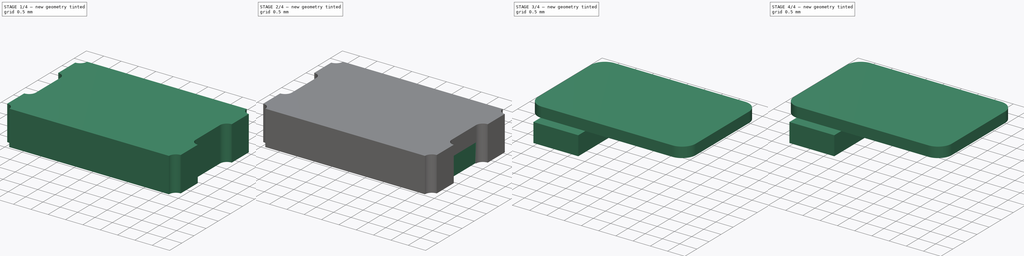
[diagram: build sequence overview — one tinted view per stage of 4, left to right]
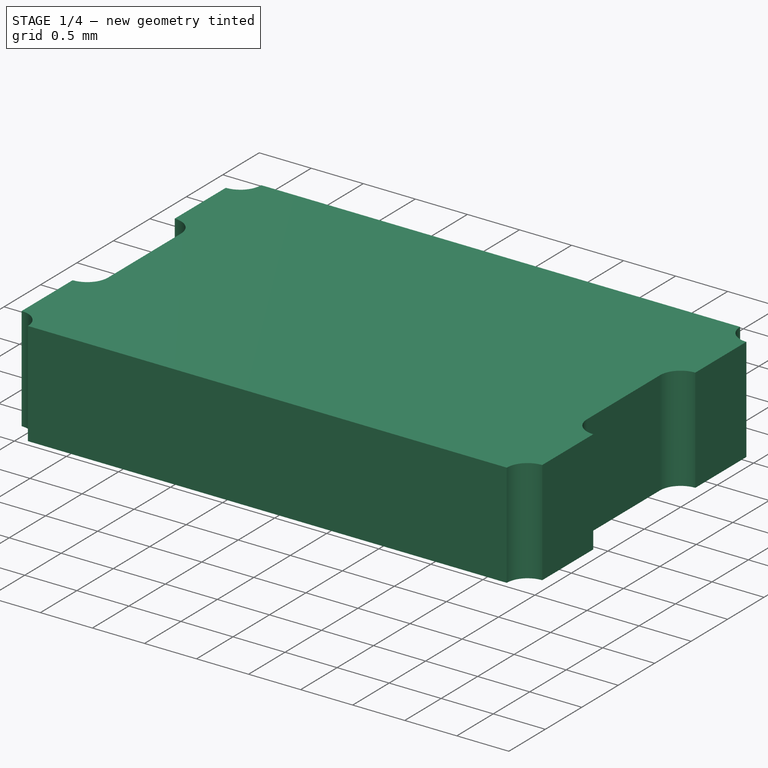
[diagram: stage 1 of 4 — iso view after this stage's code; geometry added in this stage tinted green]
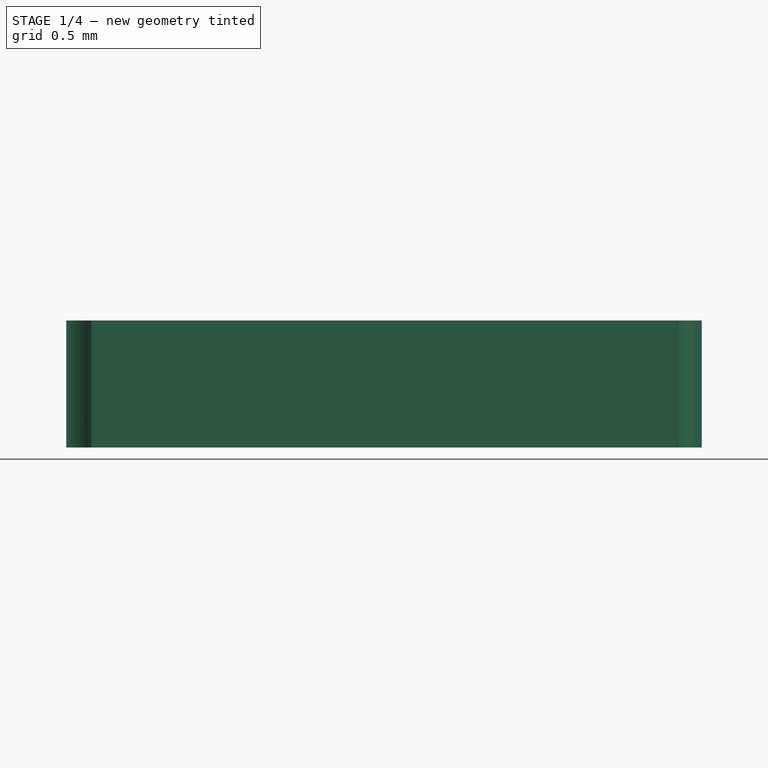
[diagram: stage 1 of 4 — front view after this stage's code; geometry added in this stage tinted green]
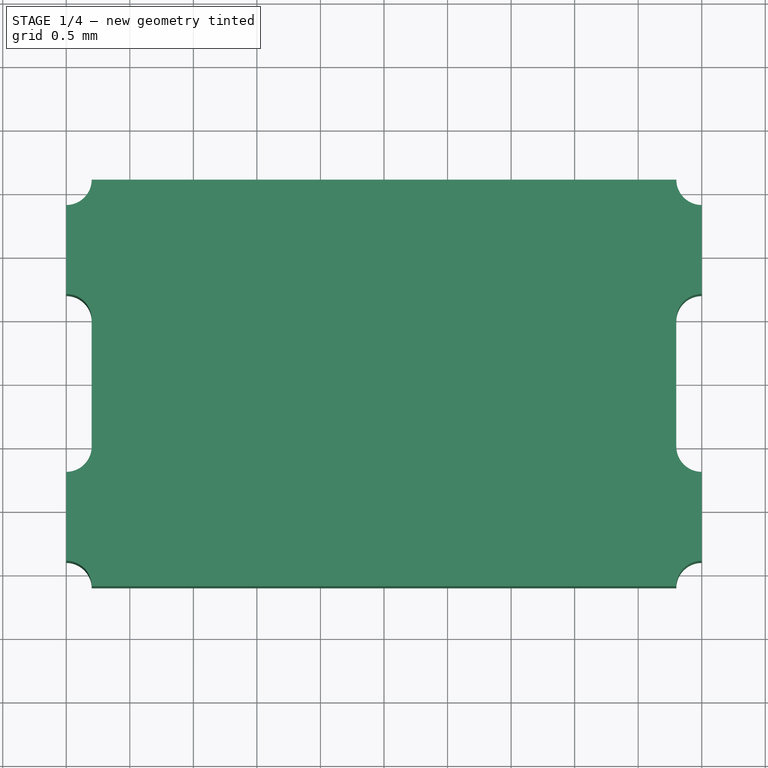
[diagram: stage 1 of 4 — top view after this stage's code; geometry added in this stage tinted green]
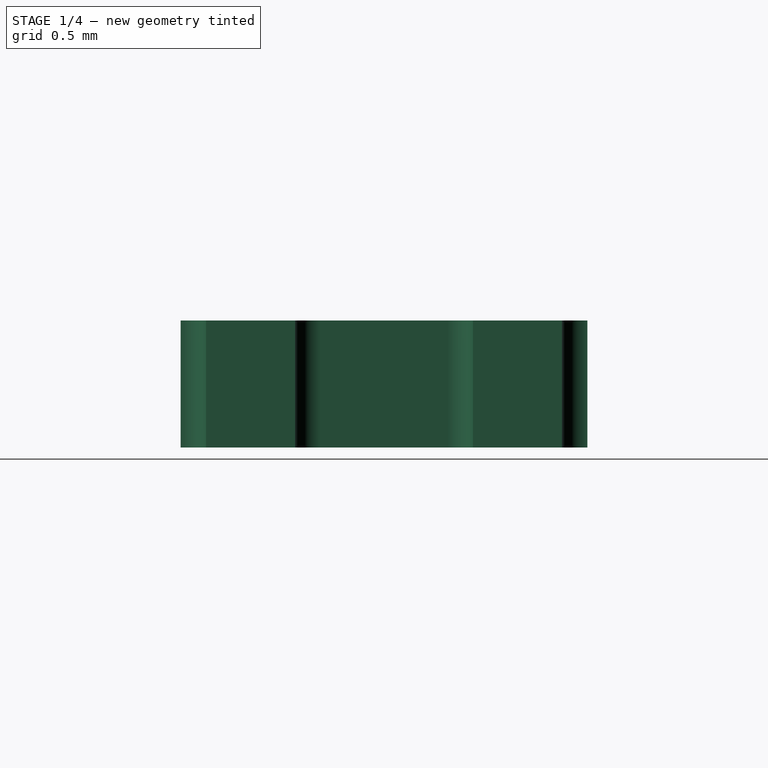
[diagram: stage 1 of 4 — right view after this stage's code; geometry added in this stage tinted green]
FCSTD DOCUMENT  (FreeCAD 0.19R23323 (Git))
Label: Crystal_NDK_NX5032GA-20.000000MHZ-LN-CD-1
License: All rights reserved
LicenseURL: http://en.wikipedia.org/wiki/All_rights_reserved
objects: Sketcher::SketchObject×7, PartDesign::Pad×4, PartDesign::Body×4, PartDesign::Pocket×4, PartDesign::ShapeBinder×2, PartDesign::FeatureBase×1
note: 30 computed .brp shape members not serialized (recipe doc carries the construction recipe); baked Part::Feature solids carry a one-line shape summary decoded from their .brp

FEATURE [Sketcher::SketchObject] Sketch
  MapMode = 5
  Support = -> [XY_Plane]
  sketch-geometry (16):
    g0: LineSegment StartX=-2.3 StartY=1.6 StartZ=0 EndX=2.3 EndY=1.6 EndZ=0
    g1: LineSegment StartX=-2.3 StartY=-1.6 StartZ=0 EndX=2.3 EndY=-1.6 EndZ=0
    g2: LineSegment StartX=-2.5 StartY=1.4 StartZ=0 EndX=-2.5 EndY=0.7 EndZ=0
    g3: LineSegment StartX=-2.5 StartY=-0.7 StartZ=0 EndX=-2.5 EndY=-1.4 EndZ=0
    g4: LineSegment StartX=2.5 StartY=1.4 StartZ=0 EndX=2.5 EndY=0.7 EndZ=0
    g5: LineSegment StartX=2.5 StartY=-0.7 StartZ=0 EndX=2.5 EndY=-1.4 EndZ=0
    g6: LineSegment StartX=-2.3 StartY=0.5 StartZ=0 EndX=-2.3 EndY=-0.5 EndZ=0
    g7: LineSegment StartX=2.3 StartY=0.5 StartZ=0 EndX=2.3 EndY=-0.5 EndZ=0
    g8: ArcOfCircle CenterX=2.5 CenterY=1.6 CenterZ=0 NormalX=0 NormalY=0 NormalZ=1 AngleXU=0 Radius=0.2 StartAngle=3.14159 EndAngle=4.71239
    g9: ArcOfCircle CenterX=2.5 CenterY=-1.6 CenterZ=0 NormalX=0 NormalY=0 NormalZ=1 AngleXU=0 Radius=0.2 StartAngle=1.5708 EndAngle=3.14159
    g10: ArcOfCircle CenterX=-2.5 CenterY=-1.6 CenterZ=0 NormalX=0 NormalY=0 NormalZ=1 AngleXU=0 Radius=0.2 StartAngle=0 EndAngle=1.5708
    g11: ArcOfCircle CenterX=-2.5 CenterY=1.6 CenterZ=0 NormalX=0 NormalY=0 NormalZ=1 AngleXU=0 Radius=0.2 StartAngle=4.71239 EndAngle=6.28319
    g12: ArcOfCircle CenterX=-2.5 CenterY=0.5 CenterZ=0 NormalX=0 NormalY=0 NormalZ=1 AngleXU=0 Radius=0.2 StartAngle=0 EndAngle=1.5708
    g13: ArcOfCircle CenterX=-2.5 CenterY=-0.5 CenterZ=0 NormalX=0 NormalY=0 NormalZ=1 AngleXU=0 Radius=0.2 StartAngle=4.71239 EndAngle=6.28319
    g14: ArcOfCircle CenterX=2.5 CenterY=0.5 CenterZ=0 NormalX=0 NormalY=0 NormalZ=1 AngleXU=0 Radius=0.2 StartAngle=1.5708 EndAngle=3.14159
    g15: ArcOfCircle CenterX=2.5 CenterY=-0.5 CenterZ=0 NormalX=0 NormalY=0 NormalZ=1 AngleXU=0 Radius=0.2 StartAngle=3.14159 EndAngle=4.71239
  constraints (55):
    c: Horizontal(g0)
    c: Horizontal(g1)
    c: Vertical(g2)
    c: Vertical(g4)
    c: Vertical(g3)
    c: Vertical(g5)
    c: Equal(g2,g3)
    c: Equal(g3,g4)
    c: Equal(g4,g5)
    c: Equal(g0,g1)
    c: Vertical(g6)
    c: Vertical(g7)
    c: Equal(g6,g7)
    c: Vertical(g3,g2)
    c: Vertical(g4,g5)
    c: Horizontal(g6,g7)
    c: Horizontal(g2,g4)
    c: Vertical(g0,g1)
    c: Coincident(g8,g0)
    c: Coincident(g8,g4)
    c: Horizontal(g0,g8)
    c: Vertical(g8,g4)
    c: Coincident(g9,g1)
    c: Coincident(g9,g5)
    c: Vertical(g9,g5)
    c: Horizontal(g9,g1)
    c: Coincident(g10,g3)
    c: Coincident(g10,g1)
    c: Horizontal(g1,g10)
    c: Vertical(g3,g10)
    c: Coincident(g11,g0)
    c: Coincident(g11,g2)
    c: Horizontal(g11,g0)
    c: Vertical(g2,g11)
    c: Coincident(g12,g2)
    c: Coincident(g12,g6)
    c: Horizontal(g12,g6)
    c: Vertical(g2,g12)
    c: Coincident(g13,g3)
    c: Coincident(g13,g6)
    c: Horizontal(g13,g6)
    c: Vertical(g13,g3)
    c: Coincident(g14,g4)
    c: Coincident(g14,g7)
    c: Coincident(g15,g7)
    c: Coincident(g15,g5)
    c: Vertical(g15,g5)
    c: Horizontal(g7,g15)
    c: Vertical(g14,g4)
    c: Equal(g10,g13)
    c: Radius(g9) = 0.2
    c: DistanceX(g3,g5) = 5
    c: DistanceY(g7,g7) = 1
    c: DistanceY(g1,g0) = 3.2
    c: Symmetric(g6,g7,g-1)
FEATURE [PartDesign::Pad] Pad
  Direction = (1,1,1)
  Length = 1
  Length2 = 100
  Profile = -> Sketch
  Type = 0
FEATURE [PartDesign::Body] Body001  label="PadLeft"
  Group = -> [ShapeBinder,Sketch003,Pad002,Pad003]
  Origin = -> Origin001
  Tip = -> Pad003
FEATURE [Sketcher::SketchObject] Sketch004
  MapMode = 5
  Placement = pos=(-2.3,0,0) rot=(0.57735,-0.57735,-0.57735;2.0944rad)
  sketch-geometry (4):
    g0: LineSegment StartX=-0.5 StartY=0 StartZ=0 EndX=0.5 EndY=0 EndZ=0
    g1: LineSegment StartX=0.5 StartY=0 StartZ=0 EndX=0.5 EndY=0.55 EndZ=0
    g2: LineSegment StartX=0.5 StartY=0.55 StartZ=0 EndX=-0.5 EndY=0.55 EndZ=0
    g3: LineSegment StartX=-0.5 StartY=0.55 StartZ=0 EndX=-0.5 EndY=0 EndZ=0
  constraints (8):
    c: Coincident(g0,g1)
    c: Coincident(g1,g2)
    c: Coincident(g2,g3)
    c: Coincident(g3,g0)
    c: Horizontal(g2)
    c: Vertical(g1)
    c: Vertical(g3)
    c: DistanceY(g1,g1) = 0.55
FEATURE [PartDesign::Pocket] Pocket
  BaseFeature = -> Pad
  Length = 0.02
  Length2 = 100
  Profile = -> Sketch004
  Type = 0
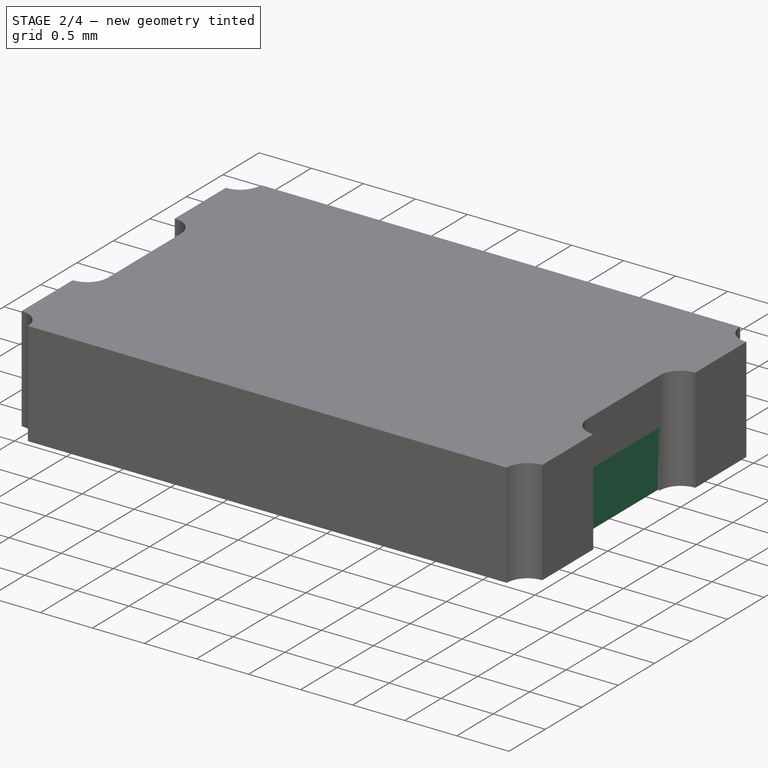
[diagram: stage 2 of 4 — iso view after this stage's code; geometry added in this stage tinted green]
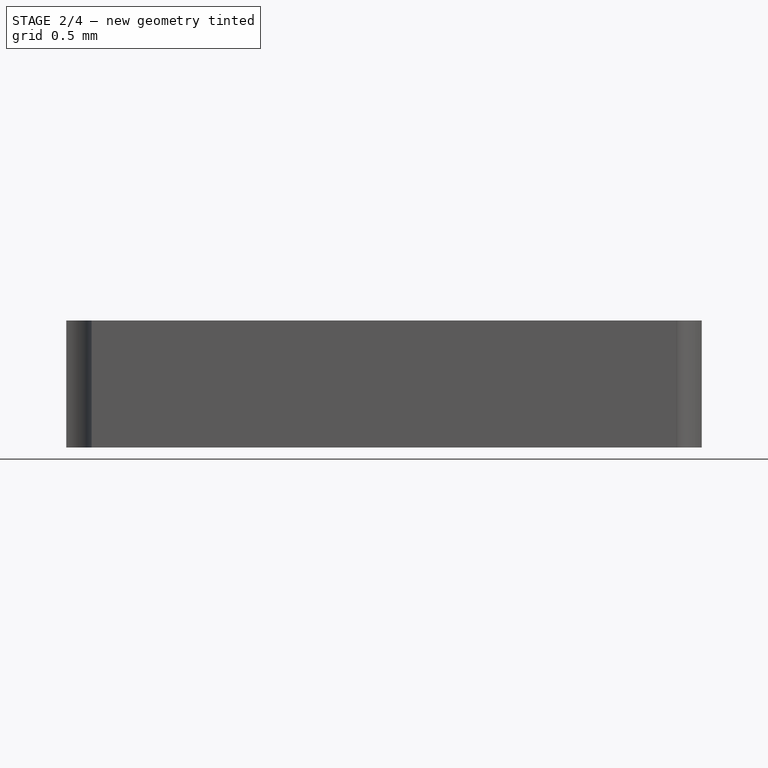
[diagram: stage 2 of 4 — front view after this stage's code; geometry added in this stage tinted green]
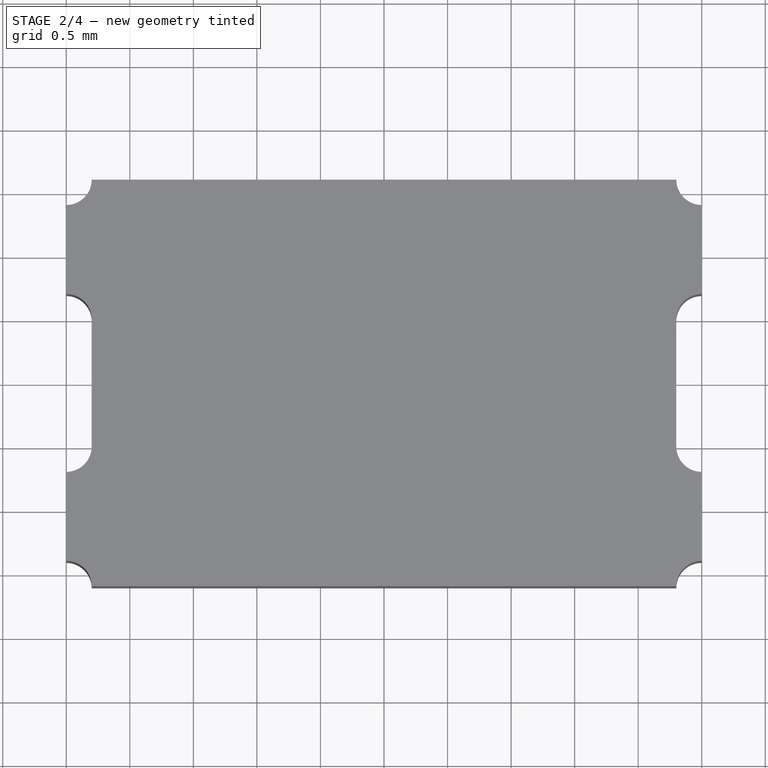
[diagram: stage 2 of 4 — top view after this stage's code; geometry added in this stage tinted green]
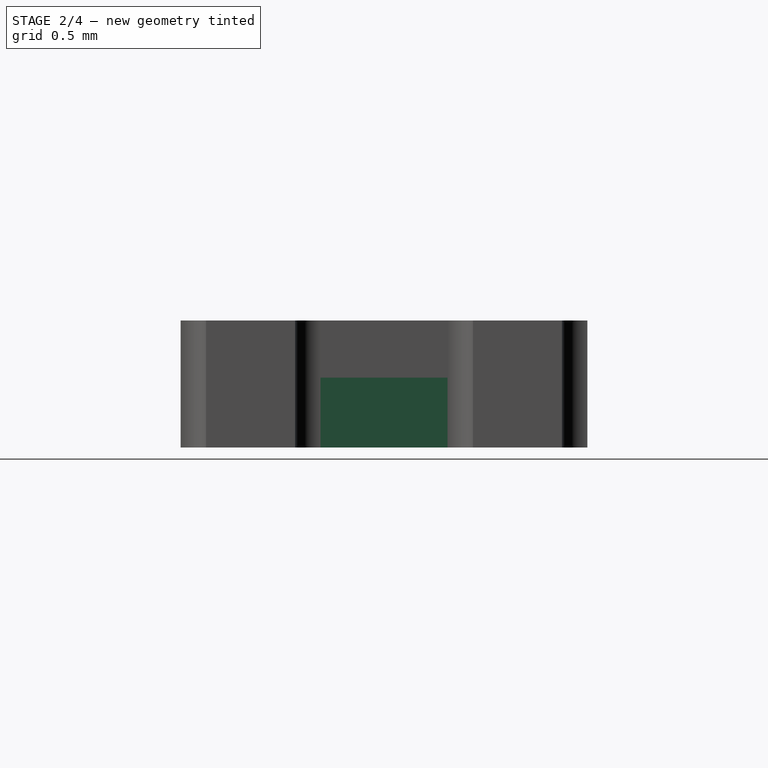
[diagram: stage 2 of 4 — right view after this stage's code; geometry added in this stage tinted green]
FEATURE [Sketcher::SketchObject] Sketch005
  ExternalGeometry = -> [Pocket]
  MapMode = 5
  Placement = pos=(0,0,0) rot=(1,0,0;3.14159rad)
  Support = -> [Pocket]
  sketch-geometry (6):
    g0: LineSegment StartX=-2.5 StartY=1 StartZ=0 EndX=-1.2 EndY=1 EndZ=0
    g1: LineSegment StartX=-1.2 StartY=1 StartZ=0 EndX=-1.2 EndY=-1 EndZ=0
    g2: LineSegment StartX=-1.2 StartY=-1 StartZ=0 EndX=-2.5 EndY=-1 EndZ=0
    g3: LineSegment StartX=-2.5 StartY=-1 StartZ=0 EndX=-2.5 EndY=1 EndZ=0
    g4: LineSegment StartX=-2.3 StartY=0.5 StartZ=0 EndX=-2.3 EndY=1 EndZ=0
    g5: LineSegment StartX=-2.3 StartY=-0.5 StartZ=0 EndX=-2.3 EndY=-1 EndZ=0
  constraints (15):
    c: Coincident(g0,g1)
    c: Coincident(g1,g2)
    c: Coincident(g2,g3)
    c: Coincident(g3,g0)
    c: Horizontal(g0)
    c: Horizontal(g2)
    c: Vertical(g1)
    c: Vertical(g3)
    c: DistanceX(g2,g2) = 1.3
    c: DistanceY(g1,g1) = 2
    c: PointOnObject(g4,g0)
    c: Vertical(g4)
    c: PointOnObject(g5,g2)
    c: Vertical(g5)
    c: Equal(g5,g4)
FEATURE [PartDesign::Pocket] Pocket001
  BaseFeature = -> Pocket
  Length = 0.02
  Length2 = 100
  Profile = -> Sketch005
  Type = 0
FEATURE [Sketcher::SketchObject] Sketch006
  ExternalGeometry = -> [Pocket001]
  MapMode = 5
  Placement = pos=(2.3,0,0) rot=(0.57735,0.57735,0.57735;2.0944rad)
  Support = -> [Pocket001]
  sketch-geometry (4):
    g0: LineSegment StartX=-0.5 StartY=0 StartZ=0 EndX=0.5 EndY=0 EndZ=0
    g1: LineSegment StartX=0.5 StartY=0 StartZ=0 EndX=0.5 EndY=0.55 EndZ=0
    g2: LineSegment StartX=0.5 StartY=0.55 StartZ=0 EndX=-0.5 EndY=0.55 EndZ=0
    g3: LineSegment StartX=-0.5 StartY=0.55 StartZ=0 EndX=-0.5 EndY=0 EndZ=0
  constraints (10):
    c: Coincident(g0,g1)
    c: Coincident(g1,g2)
    c: Coincident(g2,g3)
    c: Coincident(g3,g0)
    c: Horizontal(g2)
    c: Vertical(g1)
    c: Vertical(g3)
    c: Coincident(g0,g-3)
    c: Coincident(g0,g-3)
    c: DistanceY(g1,g1) = 0.55
FEATURE [PartDesign::Pocket] Pocket002
  BaseFeature = -> Pocket001
  Length = 0.02
  Length2 = 100
  Profile = -> Sketch006
  Type = 0
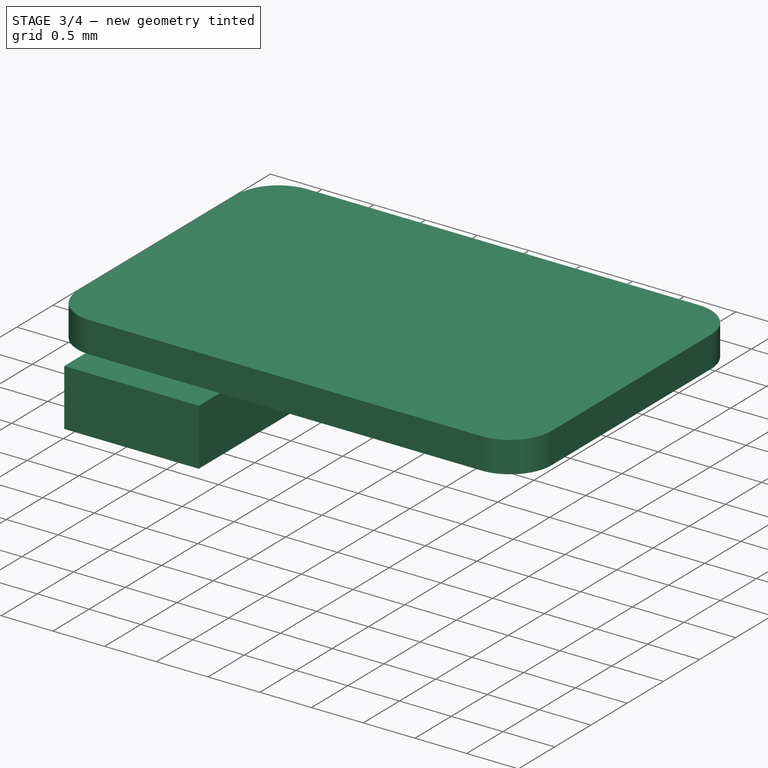
[diagram: stage 3 of 4 — iso view after this stage's code; geometry added in this stage tinted green]
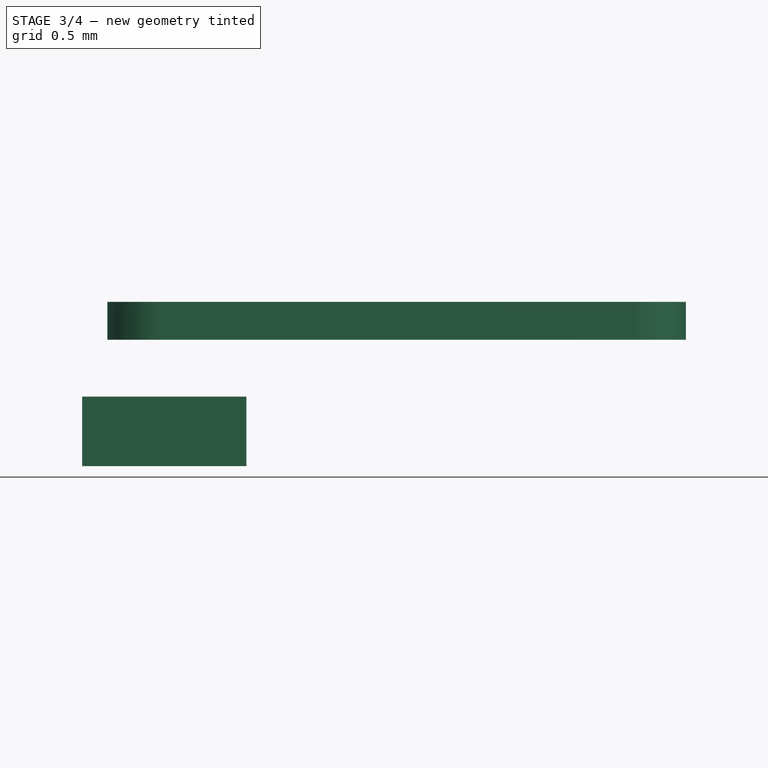
[diagram: stage 3 of 4 — front view after this stage's code; geometry added in this stage tinted green]
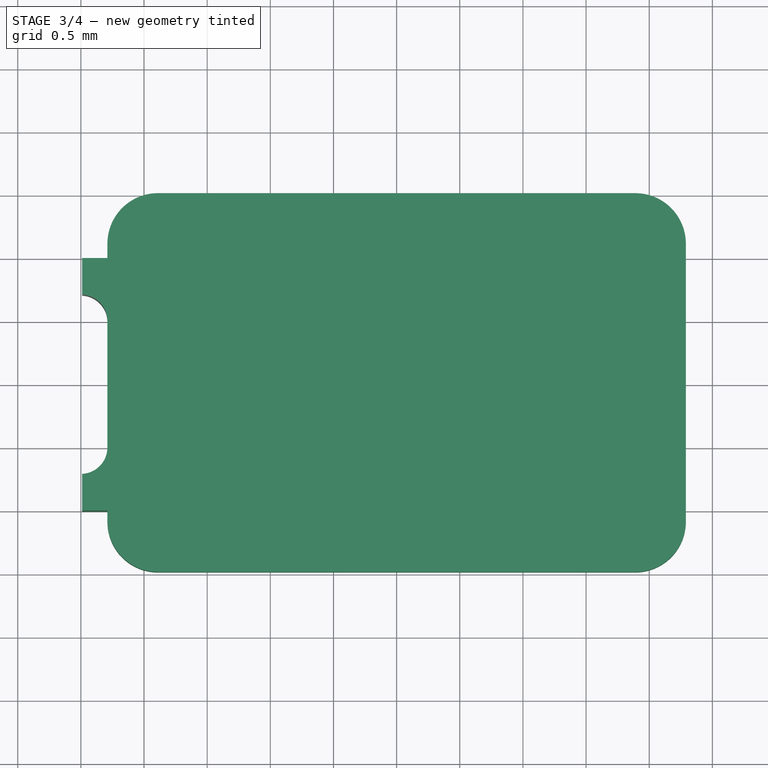
[diagram: stage 3 of 4 — top view after this stage's code; geometry added in this stage tinted green]
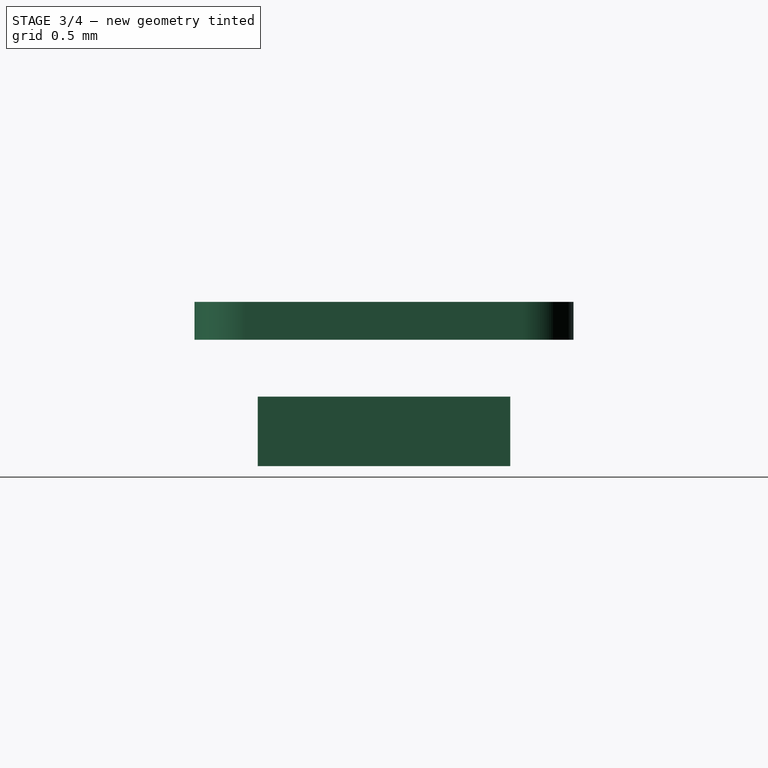
[diagram: stage 3 of 4 — right view after this stage's code; geometry added in this stage tinted green]
FEATURE [PartDesign::ShapeBinder] ShapeBinder
  TraceSupport = false
FEATURE [Sketcher::SketchObject] Sketch003
  ExternalGeometry = -> [ShapeBinder]
  MapMode = 5
  Placement = pos=(0,0,0) rot=(1,0,0;3.14159rad)
  Support = -> [ShapeBinder]
  sketch-geometry (8):
    g0: LineSegment StartX=-2.49 StartY=1 StartZ=0 EndX=-1.19 EndY=1 EndZ=0
    g1: LineSegment StartX=-1.19 StartY=1 StartZ=0 EndX=-1.19 EndY=-1 EndZ=0
    g2: LineSegment StartX=-1.19 StartY=-1 StartZ=0 EndX=-2.49 EndY=-1 EndZ=0
    g3: LineSegment StartX=-2.49 StartY=1 StartZ=0 EndX=-2.49 EndY=0.709762 EndZ=0
    g4: LineSegment StartX=-2.49 StartY=-0.709762 StartZ=0 EndX=-2.49 EndY=-1 EndZ=0
    g5: LineSegment StartX=-2.29 StartY=0.5 StartZ=0 EndX=-2.29 EndY=-0.5 EndZ=0
    g6: ArcOfCircle CenterX=-2.5 CenterY=0.5 CenterZ=0 NormalX=0 NormalY=0 NormalZ=1 AngleXU=0 Radius=0.21 StartAngle=0 EndAngle=1.52316
    g7: ArcOfCircle CenterX=-2.5 CenterY=-0.5 CenterZ=0 NormalX=0 NormalY=0 NormalZ=1 AngleXU=0 Radius=0.21 StartAngle=4.76003 EndAngle=6.28319
  constraints (24):
    c: Coincident(g0,g3)
    c: Vertical(g3)
    c: Horizontal(g0)
    c: Horizontal(g2)
    c: Vertical(g1)
    c: Vertical(g5)
    c: Vertical(g4)
    c: Coincident(g7,g4)
    c: Coincident(g6,g3)
    c: Coincident(g6,g5)
    c: Coincident(g7,g5)
    c: Coincident(g4,g2)
    c: Coincident(g2,g1)
    c: Coincident(g0,g1)
    c: Equal(g3,g4)
    c: Coincident(g6,g-5)
    c: Coincident(g-6,g7)
    c: Vertical(g3,g4)
    c: DistanceY(g1,g1) = 2
    c: Horizontal(g-6,g5)
    c: Equal(g5,g-4)
    c: DistanceX(g-6,g5) = 0.01
    c: DistanceX(g-7,g4) = 0.01
    c: DistanceX(g2,g2) = 1.3
FEATURE [PartDesign::Pad] Pad002
  Direction = (1,1,1)
  Length = 0.55
  Length2 = 100
  Profile = -> Sketch003
  Reversed = true
  Type = 0
FEATURE [PartDesign::Body] Body002  label="PadRight"
  Group = -> [Clone]
  Origin = -> Origin002
  Placement = pos=(0,5e-16,0) rot=(0,0,1;3.14159rad)
  Tip = -> Clone
FEATURE [PartDesign::Pocket] Pocket003
  BaseFeature = -> Pocket002
  Length = 0.02
  Length2 = 100
  Profile = -> Sketch007
  Type = 0
FEATURE [PartDesign::Body] Body
  Group = -> [Sketch,Pad,Sketch004,Pocket,Sketch005,Pocket001,Sketch006,Pocket002,Sketch007,Pocket003]
  Origin = -> Origin
  Tip = -> Pocket003
FEATURE [PartDesign::ShapeBinder] ShapeBinder001
  Placement = pos=(0,0,1) rot=(0,0,1;0rad)
  Support = -> [Pocket003]
  TraceSupport = false
FEATURE [Sketcher::SketchObject] Sketch008
  ExternalGeometry = -> [ShapeBinder001]
  MapMode = 5
  Placement = pos=(0,0,1) rot=(0,0,1;0rad)
  Support = -> [ShapeBinder001]
  sketch-geometry (8):
    g0: LineSegment StartX=-1.89 StartY=1.5 StartZ=0 EndX=1.89 EndY=1.5 EndZ=0
    g1: LineSegment StartX=2.29 StartY=1.1 StartZ=0 EndX=2.29 EndY=-1.1 EndZ=0
    g2: LineSegment StartX=1.89 StartY=-1.5 StartZ=0 EndX=-1.89 EndY=-1.5 EndZ=0
    g3: LineSegment StartX=-2.29 StartY=-1.1 StartZ=0 EndX=-2.29 EndY=1.1 EndZ=0
    g4: ArcOfCircle CenterX=-1.89 CenterY=1.1 CenterZ=0 NormalX=0 NormalY=0 NormalZ=1 AngleXU=0 Radius=0.4 StartAngle=1.5708 EndAngle=3.14159
    g5: ArcOfCircle CenterX=1.89 CenterY=1.1 CenterZ=0 NormalX=0 NormalY=0 NormalZ=1 AngleXU=0 Radius=0.4 StartAngle=0 EndAngle=1.5708
    g6: ArcOfCircle CenterX=1.89 CenterY=-1.1 CenterZ=0 NormalX=0 NormalY=0 NormalZ=1 AngleXU=0 Radius=0.4 StartAngle=4.71239 EndAngle=6.28319
    g7: ArcOfCircle CenterX=-1.89 CenterY=-1.1 CenterZ=0 NormalX=0 NormalY=0 NormalZ=1 AngleXU=0 Radius=0.4 StartAngle=3.14159 EndAngle=4.71239
  constraints (19):
    c: Horizontal(g0)
    c: Horizontal(g2)
    c: Vertical(g1)
    c: Vertical(g3)
    c: Tangent(g0,g4) = 1.5708
    c: Tangent(g3,g4) = 1.5708
    c: Tangent(g0,g5) = 1.5708
    c: Tangent(g1,g5) = 1.5708
    c: Tangent(g1,g6) = 1.5708
    c: Tangent(g2,g6) = 1.5708
    c: Tangent(g2,g7) = 1.5708
    c: Tangent(g3,g7) = 1.5708
    c: Equal(g4,g7)
    c: Equal(g7,g6)
    c: Equal(g6,g5)
    c: Radius(g5) = 0.4
    c: Symmetric(g3,g1,g-1)
    c: DistanceX(g-4,g3) = 0.01
    c: DistanceY(g-5,g2) = 0.1
FEATURE [PartDesign::Pad] Pad004
  Direction = (1,1,1)
  Length = 0.3
  Length2 = 100
  Placement = pos=(0,0,1) rot=(0,0,1;0rad)
  Profile = -> Sketch008
  Type = 0
FEATURE [PartDesign::Body] Body003  label="Top"
  Group = -> [ShapeBinder001,Sketch008,Pad004]
  Origin = -> Origin003
  Tip = -> Pad004
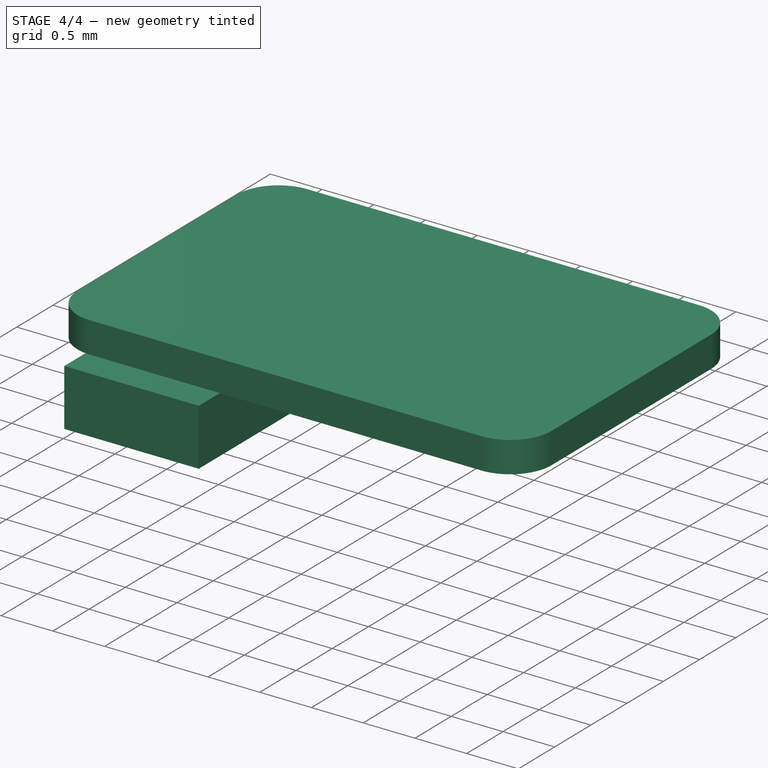
[diagram: stage 4 of 4 — iso view after this stage's code; geometry added in this stage tinted green]
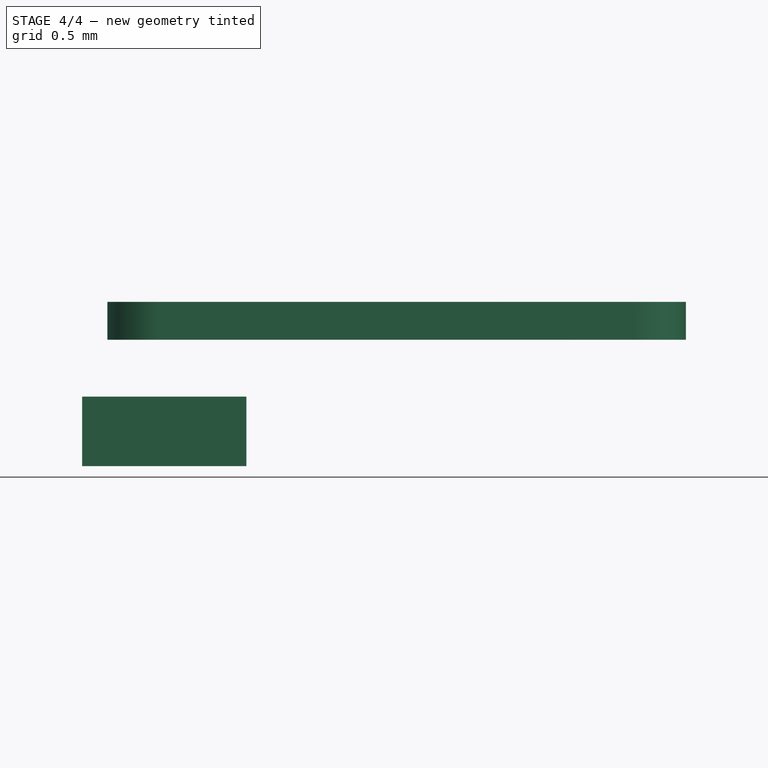
[diagram: stage 4 of 4 — front view after this stage's code; geometry added in this stage tinted green]
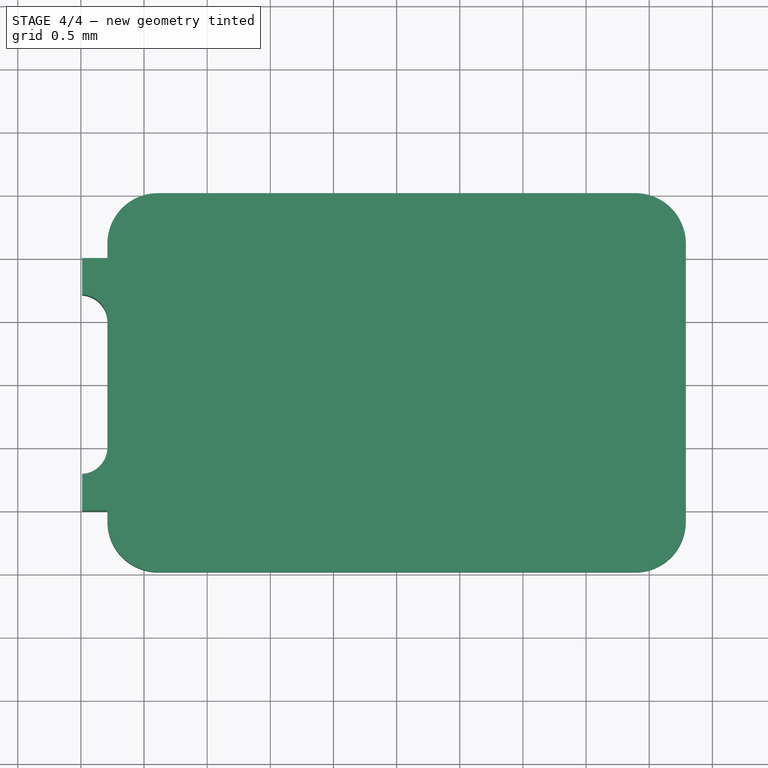
[diagram: stage 4 of 4 — top view after this stage's code; geometry added in this stage tinted green]
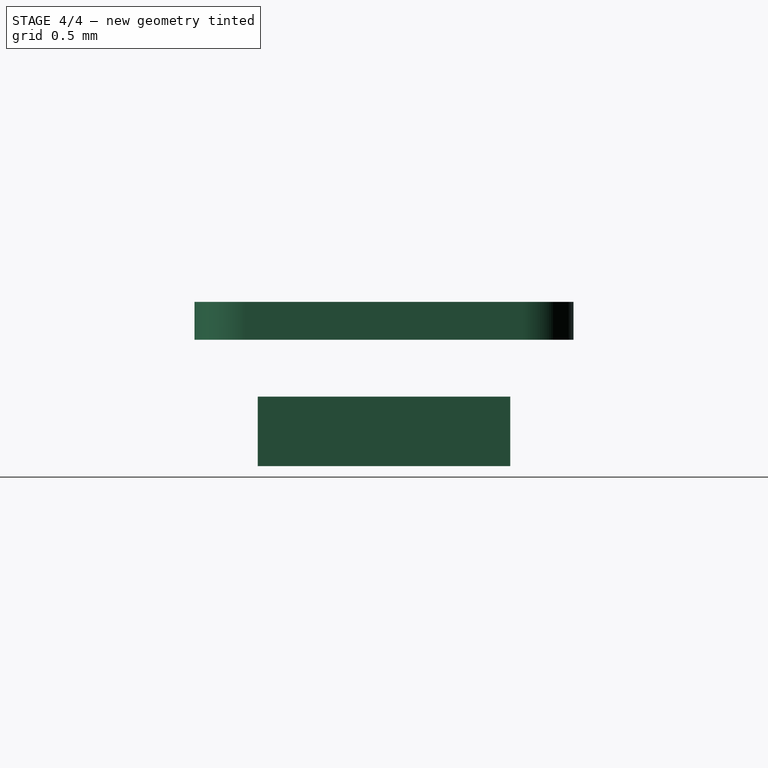
[diagram: stage 4 of 4 — right view after this stage's code; geometry added in this stage tinted green]
FEATURE [PartDesign::Pad] Pad003
  BaseFeature = -> Pad002
  Direction = (1,1,1)
  Length = 0.55
  Length2 = 100
  Profile = -> Sketch003
  Reversed = true
  Type = 0
FEATURE [Sketcher::SketchObject] Sketch007
  ExternalGeometry = -> [Pocket002]
  MapMode = 5
  Placement = pos=(0,0,0) rot=(1,0,0;3.14159rad)
  Support = -> [Pocket002]
  sketch-geometry (6):
    g0: LineSegment StartX=2.5 StartY=1 StartZ=0 EndX=1.2 EndY=1 EndZ=0
    g1: LineSegment StartX=1.2 StartY=1 StartZ=0 EndX=1.2 EndY=-1 EndZ=0
    g2: LineSegment StartX=1.2 StartY=-1 StartZ=0 EndX=2.5 EndY=-1 EndZ=0
    g3: LineSegment StartX=2.5 StartY=-1 StartZ=0 EndX=2.5 EndY=1 EndZ=0
    g4: LineSegment StartX=2.3 StartY=0.5 StartZ=0 EndX=2.3 EndY=1 EndZ=0
    g5: LineSegment StartX=2.3 StartY=-0.5 StartZ=0 EndX=2.3 EndY=-1 EndZ=0
  constraints (15):
    c: Coincident(g0,g1)
    c: Coincident(g1,g2)
    c: Coincident(g2,g3)
    c: Coincident(g3,g0)
    c: Horizontal(g0)
    c: Horizontal(g2)
    c: Vertical(g1)
    c: Vertical(g3)
    c: DistanceX(g2,g2) = 1.3
    c: DistanceY(g1,g1) = 2
    c: PointOnObject(g4,g0)
    c: Vertical(g4)
    c: PointOnObject(g5,g2)
    c: Vertical(g5)
    c: Equal(g4,g5)
FEATURE [PartDesign::FeatureBase] Clone
  BaseFeature = -> Body001
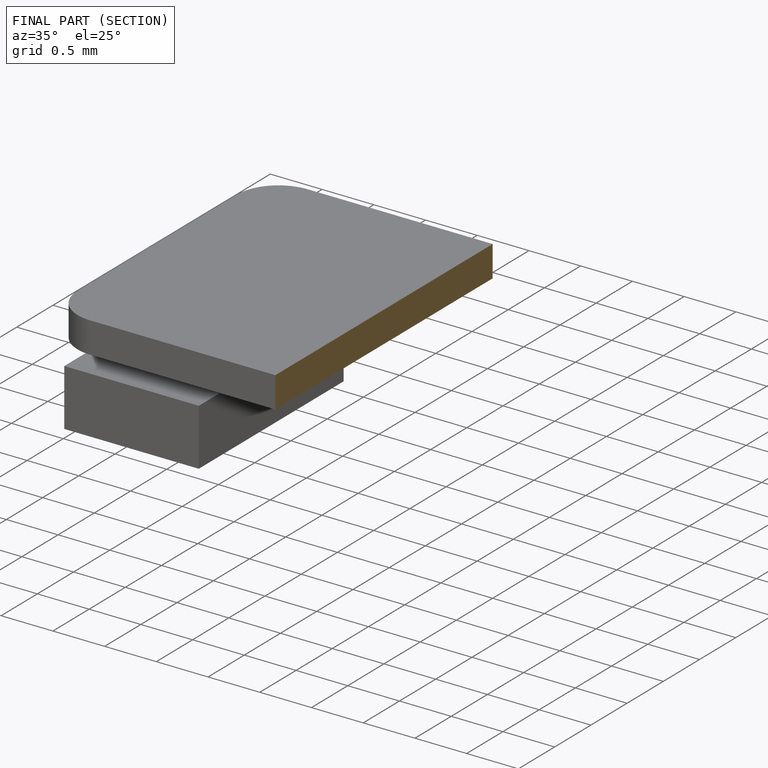
[diagram: finished part — half-section view (interior)]
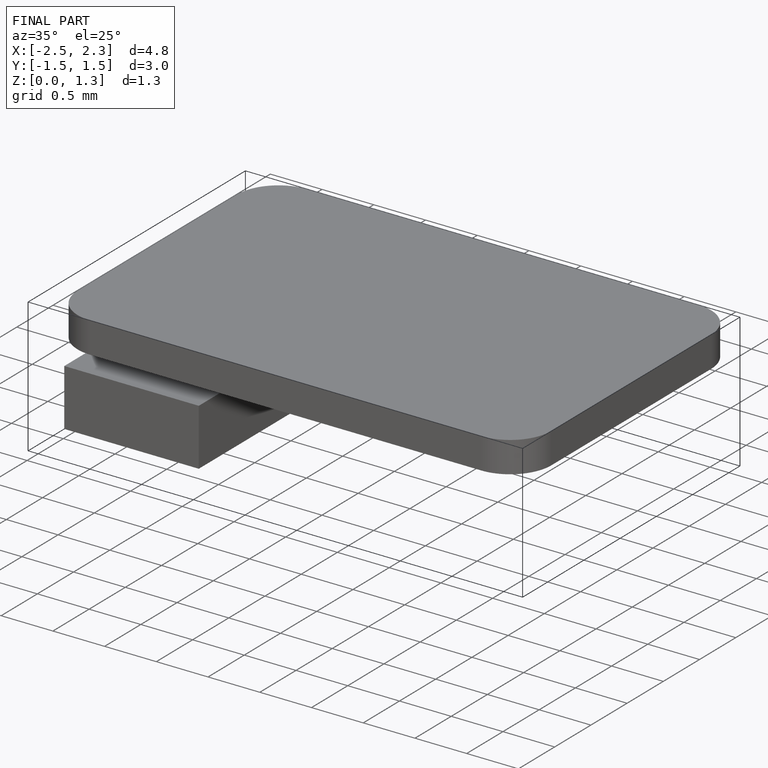
[diagram: finished part — iso view with bounding-box wireframe]
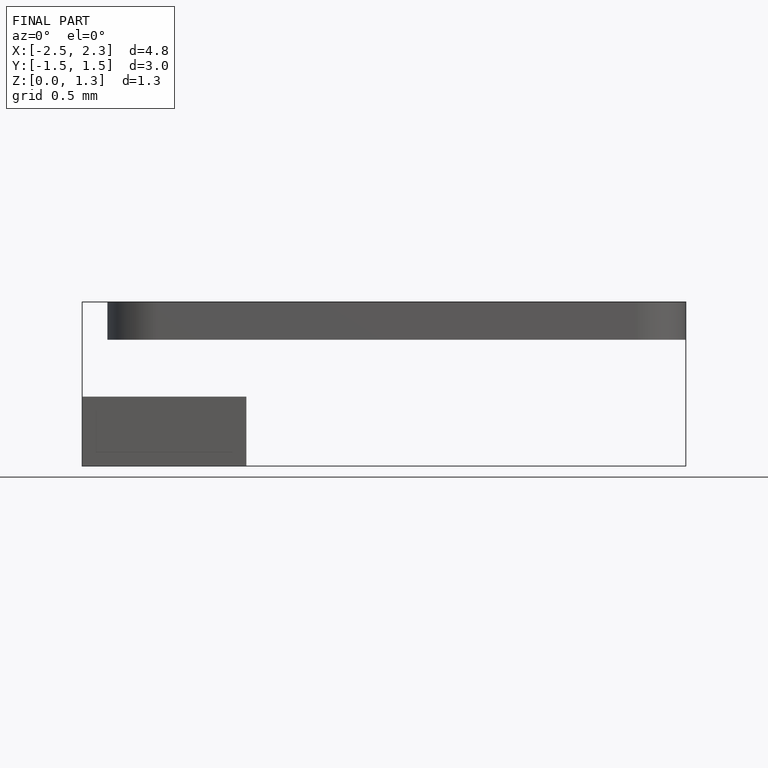
[diagram: finished part — front view with bounding-box wireframe]
